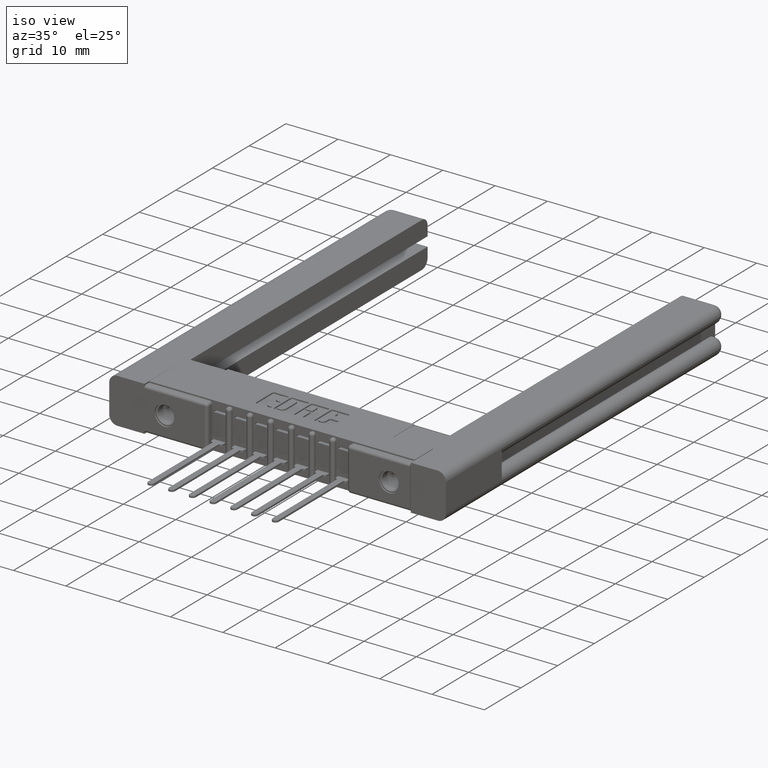
[diagram: clean part render]
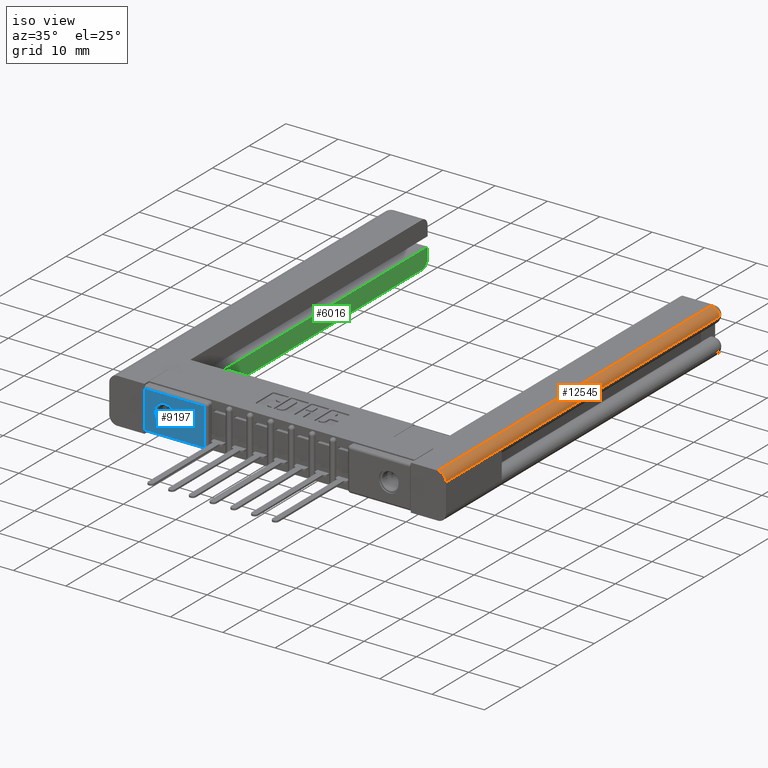
[diagram: same view with three faces highlighted in distinct colors, each labeled with its STEP entity id]
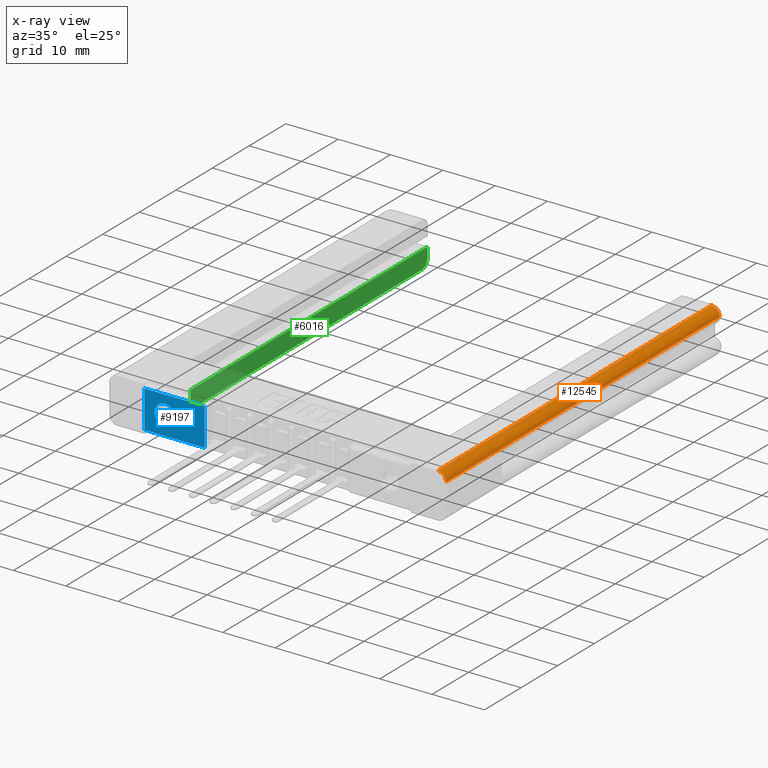
[diagram: x-ray of the same camera — body ghosted, the three highlighted faces saturated]
A machine part, iso view with three faces highlighted in distinct colors.
The next image is the same camera in x-ray (body ghosted, the three faces saturated) — at least one of them is partly hidden behind the body in this view.
Their STEP definitions:

[orange] entity #12545 — the highlighted cylindrical surface (edge-blend (fillet) strip) has radius 1.5621 mm, axis along (0, -1, -0).
#744 = CIRCLE ( 'NONE', #3026, 0.06150000000000035300 ) ;
#884 = CARTESIAN_POINT ( 'NONE',  ( 0.0000000000000000000, 6.936332796413168713E-17, -0.2785000000000017462 ) ) ;
#896 = EDGE_CURVE ( 'NONE', #2306, #6516, #3326, .T. ) ;
#1560 = AXIS2_PLACEMENT_3D ( 'NONE', #7011, #7790, #2037 ) ;
#1706 = AXIS2_PLACEMENT_3D ( 'NONE', #1887, #9807, #9877 ) ;
#1887 = CARTESIAN_POINT ( 'NONE',  ( 0.06150000000000015177, 1.109813247426106994E-16, -0.2785000000000017462 ) ) ;
#2037 = DIRECTION ( 'NONE',  ( 0.0000000000000000000, 2.334284690065025195E-16, -1.000000000000000000 ) ) ;
#2295 = EDGE_CURVE ( 'NONE', #12080, #2306, #8581, .T. ) ;
#2306 = VERTEX_POINT ( 'NONE', #9609 ) ;
#2500 = LINE ( 'NONE', #5715, #2521 ) ;
#2521 = VECTOR ( 'NONE', #7863, 39.37007874015748143 ) ;
#2921 = EDGE_CURVE ( 'NONE', #4115, #12080, #9858, .T. ) ;
#3026 = AXIS2_PLACEMENT_3D ( 'NONE', #4022, #11013, #9806 ) ;
#3248 = VERTEX_POINT ( 'NONE', #6952 ) ;
#3252 = EDGE_CURVE ( 'NONE', #4115, #3248, #2500, .T. ) ;
#3326 = LINE ( 'NONE', #7478, #7793 ) ;
#3984 = CARTESIAN_POINT ( 'NONE',  ( 0.0000000000000000000, 6.936332796413168713E-17, -0.2785000000000017462 ) ) ;
#4022 = CARTESIAN_POINT ( 'NONE',  ( 0.06150000000000370448, 2.940000000000007052, -0.2785000000000021902 ) ) ;
#4115 = VERTEX_POINT ( 'NONE', #9064 ) ;
#4136 = DIRECTION ( 'NONE',  ( -7.120336040201873227E-16, -1.000000000000000000, 2.334284690065039986E-16 ) ) ;
#5715 = CARTESIAN_POINT ( 'NONE',  ( 0.0000000000000000000, 6.936332796413168713E-17, -0.2785000000000017462 ) ) ;
#5931 = ORIENTED_EDGE ( 'NONE', *, *, #3252, .T. ) ;
#6516 = VERTEX_POINT ( 'NONE', #9848 ) ;
#6952 = CARTESIAN_POINT ( 'NONE',  ( 3.551402391763542381E-15, 2.940000000000007052, -0.2785000000000026343 ) ) ;
#7011 = CARTESIAN_POINT ( 'NONE',  ( 0.06150000000000015177, 1.109813247426106994E-16, -0.2785000000000017462 ) ) ;
#7355 = EDGE_LOOP ( 'NONE', ( #5931, #11961, #9411, #12147, #7738 ) ) ;
#7478 = CARTESIAN_POINT ( 'NONE',  ( 0.06150000000000015177, 1.248539903354370368E-16, -0.3400000000000018563 ) ) ;
#7738 = ORIENTED_EDGE ( 'NONE', *, *, #2921, .F. ) ;
#7790 = DIRECTION ( 'NONE',  ( -7.120336040201873227E-16, -1.000000000000000000, 2.334284690065039986E-16 ) ) ;
#7793 = VECTOR ( 'NONE', #12394, 39.37007874015748143 ) ;
#7863 = DIRECTION ( 'NONE',  ( 7.120336040201873227E-16, 1.000000000000000000, -2.334284690065039986E-16 ) ) ;
#8453 = FACE_OUTER_BOUND ( 'NONE', #7355, .T. ) ;
#8581 = CIRCLE ( 'NONE', #1706, 0.06150000000000035300 ) ;
#9064 = CARTESIAN_POINT ( 'NONE',  ( 0.0000000000000000000, 0.5999999999999998668, -0.2785000000000021902 ) ) ;
#9243 = EDGE_CURVE ( 'NONE', #3248, #6516, #744, .T. ) ;
#9411 = ORIENTED_EDGE ( 'NONE', *, *, #896, .F. ) ;
#9609 = CARTESIAN_POINT ( 'NONE',  ( 0.06150000000000015177, 1.248539903354370368E-16, -0.3400000000000018563 ) ) ;
#9806 = DIRECTION ( 'NONE',  ( 0.0000000000000000000, 0.0000000000000000000, 1.000000000000000000 ) ) ;
#9807 = DIRECTION ( 'NONE',  ( -7.076409657662517778E-16, -1.000000000000000000, 2.334284690065039493E-16 ) ) ;
#9848 = CARTESIAN_POINT ( 'NONE',  ( 0.06150000000000370448, 2.940000000000007052, -0.3400000000000031886 ) ) ;
#9858 = LINE ( 'NONE', #884, #12251 ) ;
#9877 = DIRECTION ( 'NONE',  ( 1.000000000000000000, 7.164262422741189232E-16, 0.0000000000000000000 ) ) ;
#10490 = CYLINDRICAL_SURFACE ( 'NONE', #1560, 0.06150000000000035300 ) ;
#11013 = DIRECTION ( 'NONE',  ( -7.120336040201873227E-16, -1.000000000000000000, 2.334284690065039986E-16 ) ) ;
#11961 = ORIENTED_EDGE ( 'NONE', *, *, #9243, .T. ) ;
#12080 = VERTEX_POINT ( 'NONE', #3984 ) ;
#12147 = ORIENTED_EDGE ( 'NONE', *, *, #2295, .F. ) ;
#12251 = VECTOR ( 'NONE', #4136, 39.37007874015748143 ) ;
#12394 = DIRECTION ( 'NONE',  ( 7.120336040201873227E-16, 1.000000000000000000, -2.334284690065039986E-16 ) ) ;
#12545 = ADVANCED_FACE ( 'NONE', ( #8453 ), #10490, .T. ) ;

[blue] entity #9197 — the highlighted planar face has unit normal (0, -1, 0).
#635 = CARTESIAN_POINT ( 'NONE',  ( 0.1550000000000003875, 0.0000000000000000000, -0.2494999999999999996 ) ) ;
#797 = CARTESIAN_POINT ( 'NONE',  ( 0.0000000000000000000, 0.0000000000000000000, -0.02999999999999999542 ) ) ;
#1025 = FACE_BOUND ( 'NONE', #12897, .T. ) ;
#1187 = DIRECTION ( 'NONE',  ( 0.0000000000000000000, -1.000000000000000000, 0.0000000000000000000 ) ) ;
#1679 = ORIENTED_EDGE ( 'NONE', *, *, #11937, .F. ) ;
#1721 = EDGE_CURVE ( 'NONE', #12937, #10778, #11446, .T. ) ;
#1773 = VERTEX_POINT ( 'NONE', #9311 ) ;
#1860 = VERTEX_POINT ( 'NONE', #11806 ) ;
#1900 = AXIS2_PLACEMENT_3D ( 'NONE', #6299, #1187, #10231 ) ;
#2461 = CARTESIAN_POINT ( 'NONE',  ( 1.083812417245411660E-17, 0.0000000000000000000, -0.02999999999999999542 ) ) ;
#2552 = VECTOR ( 'NONE', #8304, 39.37007874015748143 ) ;
#2560 = ORIENTED_EDGE ( 'NONE', *, *, #10847, .T. ) ;
#2736 = ORIENTED_EDGE ( 'NONE', *, *, #4710, .F. ) ;
#2876 = ORIENTED_EDGE ( 'NONE', *, *, #6276, .T. ) ;
#2880 = DIRECTION ( 'NONE',  ( 1.000000000000000000, 0.0000000000000000000, 0.0000000000000000000 ) ) ;
#2900 = VERTEX_POINT ( 'NONE', #7893 ) ;
#2945 = LINE ( 'NONE', #3128, #3594 ) ;
#2982 = PLANE ( 'NONE',  #3230 ) ;
#3128 = CARTESIAN_POINT ( 'NONE',  ( 0.0000000000000000000, 0.0000000000000000000, 0.0000000000000000000 ) ) ;
#3129 = CIRCLE ( 'NONE', #1900, 0.07799999999999999989 ) ;
#3171 = CARTESIAN_POINT ( 'NONE',  ( 0.4529999999999999027, 0.0000000000000000000, -0.03000000000000002318 ) ) ;
#3230 = AXIS2_PLACEMENT_3D ( 'NONE', #5019, #6074, #11860 ) ;
#3544 = LINE ( 'NONE', #3171, #2552 ) ;
#3594 = VECTOR ( 'NONE', #5181, 39.37007874015748143 ) ;
#3630 = AXIS2_PLACEMENT_3D ( 'NONE', #6695, #4718, #3726 ) ;
#3726 = DIRECTION ( 'NONE',  ( 0.0000000000000000000, 0.0000000000000000000, -1.000000000000000000 ) ) ;
#4710 = EDGE_CURVE ( 'NONE', #1773, #9872, #3129, .T. ) ;
#4718 = DIRECTION ( 'NONE',  ( 0.0000000000000000000, -1.000000000000000000, 0.0000000000000000000 ) ) ;
#5019 = CARTESIAN_POINT ( 'NONE',  ( 0.0000000000000000000, 0.0000000000000000000, -0.3430000000000000271 ) ) ;
#5181 = DIRECTION ( 'NONE',  ( -0.0000000000000000000, -0.0000000000000000000, 1.000000000000000000 ) ) ;
#5885 = VECTOR ( 'NONE', #6456, 39.37007874015748143 ) ;
#6074 = DIRECTION ( 'NONE',  ( 0.0000000000000000000, -1.000000000000000000, 0.0000000000000000000 ) ) ;
#6276 = EDGE_CURVE ( 'NONE', #1860, #12937, #3544, .T. ) ;
#6299 = CARTESIAN_POINT ( 'NONE',  ( 0.1550000000000003875, 0.0000000000000000000, -0.1715000000000000135 ) ) ;
#6456 = DIRECTION ( 'NONE',  ( -1.000000000000000000, -0.0000000000000000000, 0.0000000000000000000 ) ) ;
#6695 = CARTESIAN_POINT ( 'NONE',  ( 0.1550000000000003875, 0.0000000000000000000, -0.1715000000000000135 ) ) ;
#6760 = LINE ( 'NONE', #12853, #10103 ) ;
#7061 = EDGE_CURVE ( 'NONE', #2900, #10778, #2945, .T. ) ;
#7893 = CARTESIAN_POINT ( 'NONE',  ( 0.0000000000000000000, 0.0000000000000000000, -0.3130000000000000004 ) ) ;
#8304 = DIRECTION ( 'NONE',  ( -1.592914282019978436E-15, -0.0000000000000000000, 1.000000000000000000 ) ) ;
#9197 = ADVANCED_FACE ( 'NONE', ( #1025, #9949 ), #2982, .T. ) ;
#9295 = CIRCLE ( 'NONE', #3630, 0.07799999999999999989 ) ;
#9311 = CARTESIAN_POINT ( 'NONE',  ( 0.1550000000000003875, 0.0000000000000000000, -0.09349999999999999978 ) ) ;
#9451 = ORIENTED_EDGE ( 'NONE', *, *, #7061, .F. ) ;
#9872 = VERTEX_POINT ( 'NONE', #635 ) ;
#9949 = FACE_OUTER_BOUND ( 'NONE', #10950, .T. ) ;
#10103 = VECTOR ( 'NONE', #2880, 39.37007874015748143 ) ;
#10231 = DIRECTION ( 'NONE',  ( 0.0000000000000000000, 0.0000000000000000000, -1.000000000000000000 ) ) ;
#10778 = VERTEX_POINT ( 'NONE', #797 ) ;
#10847 = EDGE_CURVE ( 'NONE', #2900, #1860, #6760, .T. ) ;
#10950 = EDGE_LOOP ( 'NONE', ( #2876, #11903, #9451, #2560 ) ) ;
#11446 = LINE ( 'NONE', #2461, #5885 ) ;
#11582 = CARTESIAN_POINT ( 'NONE',  ( 0.4529999999999999027, 0.0000000000000000000, -0.03000000000000002318 ) ) ;
#11806 = CARTESIAN_POINT ( 'NONE',  ( 0.4530000000000003468, 0.0000000000000000000, -0.3130000000000000004 ) ) ;
#11860 = DIRECTION ( 'NONE',  ( 0.0000000000000000000, -0.0000000000000000000, -1.000000000000000000 ) ) ;
#11903 = ORIENTED_EDGE ( 'NONE', *, *, #1721, .T. ) ;
#11937 = EDGE_CURVE ( 'NONE', #9872, #1773, #9295, .T. ) ;
#12853 = CARTESIAN_POINT ( 'NONE',  ( 0.0000000000000000000, 0.0000000000000000000, -0.3130000000000000004 ) ) ;
#12897 = EDGE_LOOP ( 'NONE', ( #1679, #2736 ) ) ;
#12937 = VERTEX_POINT ( 'NONE', #11582 ) ;

[green] entity #6016 — the highlighted planar face has unit normal (1, -0, 0).
#305 = VERTEX_POINT ( 'NONE', #9070 ) ;
#702 = DIRECTION ( 'NONE',  ( 5.915108984173514150E-16, 1.000000000000000000, -2.334284690065039000E-16 ) ) ;
#1108 = LINE ( 'NONE', #4166, #1832 ) ;
#1290 = ORIENTED_EDGE ( 'NONE', *, *, #6786, .T. ) ;
#1598 = VERTEX_POINT ( 'NONE', #6596 ) ;
#1617 = VECTOR ( 'NONE', #9679, 39.37007874015748143 ) ;
#1629 = DIRECTION ( 'NONE',  ( 1.000000000000000000, -5.915108984173514150E-16, 4.510281037539700911E-17 ) ) ;
#1832 = VECTOR ( 'NONE', #8180, 39.37007874015748143 ) ;
#2481 = EDGE_CURVE ( 'NONE', #5675, #1598, #4024, .T. ) ;
#2496 = DIRECTION ( 'NONE',  ( 5.691349986800556753E-16, 1.000000000000000000, 0.0000000000000000000 ) ) ;
#2859 = CARTESIAN_POINT ( 'NONE',  ( 0.2950000000000065348, 3.000000000000006661, -0.3400000000000031886 ) ) ;
#3073 = CARTESIAN_POINT ( 'NONE',  ( 0.2950000000000062572, 0.4500000000000002331, -0.3400000000000031886 ) ) ;
#3373 = ORIENTED_EDGE ( 'NONE', *, *, #3378, .F. ) ;
#3378 = EDGE_CURVE ( 'NONE', #1598, #305, #1108, .T. ) ;
#3600 = EDGE_CURVE ( 'NONE', #4738, #305, #11863, .T. ) ;
#3631 = LINE ( 'NONE', #12701, #5506 ) ;
#3648 = DIRECTION ( 'NONE',  ( 5.915108984173514150E-16, 1.000000000000000000, -2.334284690065039000E-16 ) ) ;
#4024 = LINE ( 'NONE', #12892, #10954 ) ;
#4166 = CARTESIAN_POINT ( 'NONE',  ( 0.2950000000000062572, 0.4500000000000001221, -0.2055000000000009319 ) ) ;
#4738 = VERTEX_POINT ( 'NONE', #9177 ) ;
#4854 = ORIENTED_EDGE ( 'NONE', *, *, #2481, .F. ) ;
#5154 = DIRECTION ( 'NONE',  ( 4.510281037539688585E-17, -2.334284690065025688E-16, 1.000000000000000000 ) ) ;
#5506 = VECTOR ( 'NONE', #702, 39.37007874015748143 ) ;
#5675 = VERTEX_POINT ( 'NONE', #3073 ) ;
#6016 = ADVANCED_FACE ( 'NONE', ( #10626 ), #12513, .T. ) ;
#6596 = CARTESIAN_POINT ( 'NONE',  ( 0.2950000000000062572, 0.4500000000000001221, -0.2055000000000009319 ) ) ;
#6786 = EDGE_CURVE ( 'NONE', #11387, #4738, #10756, .T. ) ;
#6940 = ORIENTED_EDGE ( 'NONE', *, *, #3600, .T. ) ;
#8180 = DIRECTION ( 'NONE',  ( 5.915108984173514150E-16, 1.000000000000000000, -2.334284690065039000E-16 ) ) ;
#9070 = CARTESIAN_POINT ( 'NONE',  ( 0.2950000000000065348, 3.000000000000006661, -0.2055000000000018201 ) ) ;
#9177 = CARTESIAN_POINT ( 'NONE',  ( 0.2950000000000065348, 3.000000000000006661, -0.2800000000000026357 ) ) ;
#9238 = AXIS2_PLACEMENT_3D ( 'NONE', #12452, #1629, #3648 ) ;
#9679 = DIRECTION ( 'NONE',  ( 4.510281037539688585E-17, -2.334284690065025688E-16, 1.000000000000000000 ) ) ;
#9867 = CARTESIAN_POINT ( 'NONE',  ( 0.2950000000000065348, 2.940000000000007052, -0.3400000000000031886 ) ) ;
#10378 = CARTESIAN_POINT ( 'NONE',  ( 0.2950000000000065348, 2.940000000000007052, -0.2800000000000026357 ) ) ;
#10626 = FACE_OUTER_BOUND ( 'NONE', #10759, .T. ) ;
#10756 = CIRCLE ( 'NONE', #10963, 0.05999999999999990757 ) ;
#10759 = EDGE_LOOP ( 'NONE', ( #10998, #1290, #6940, #3373, #4854 ) ) ;
#10954 = VECTOR ( 'NONE', #5154, 39.37007874015748143 ) ;
#10963 = AXIS2_PLACEMENT_3D ( 'NONE', #10378, #11482, #2496 ) ;
#10998 = ORIENTED_EDGE ( 'NONE', *, *, #11143, .T. ) ;
#11143 = EDGE_CURVE ( 'NONE', #5675, #11387, #3631, .T. ) ;
#11387 = VERTEX_POINT ( 'NONE', #9867 ) ;
#11482 = DIRECTION ( 'NONE',  ( 1.000000000000000000, 8.325563096230176097E-16, 4.510281037539667631E-17 ) ) ;
#11863 = LINE ( 'NONE', #2859, #1617 ) ;
#12452 = CARTESIAN_POINT ( 'NONE',  ( 0.2950000000000065348, 3.000000000000006661, -0.3400000000000031886 ) ) ;
#12513 = PLANE ( 'NONE',  #9238 ) ;
#12701 = CARTESIAN_POINT ( 'NONE',  ( 0.2950000000000065348, 3.000000000000006661, -0.3400000000000031886 ) ) ;
#12892 = CARTESIAN_POINT ( 'NONE',  ( 0.2950000000000062572, 0.4500000000000002331, -0.3400000000000031886 ) ) ;